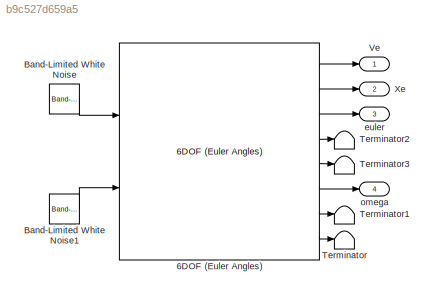
MODEL slx_b9c527d659a5
KIND model
CONFIG AbsTol = auto
CONFIG EnableMultiTasking = off
CONFIG FixedStep = auto
CONFIG MaxStep = auto
CONFIG MinStep = auto
CONFIG RelTol = 1e-3
CONFIG SampleTimeConstraint = Unconstrained
CONFIG Solver = VariableStepAuto
CONFIG SolverName = VariableStepAuto
CONFIG StartTime = 0.0
CONFIG StopTime = 10.0
BLOCK [Reference] 6DOF (Euler Angles)  REF=shared6dof/6DOF (Euler Angles)
  Ports = [2, 8]
  SourceBlock = shared6dof/6DOF (Euler Angles)
  SourceProductBaseCode = AE
  SourceProductName = Aerospace Blockset
  SourceType = 6DOF EoM (Body Axis)
BLOCK [Reference] Band-Limited White Noise  REF=simulink/Sources/Band-Limited
White Noise
  Ports = [0, 1]
  SourceBlock = simulink/Sources/Band-Limited\nWhite Noise
  SourceProductBaseCode = SL
  SourceProductName = Simulink
  SourceType = Band-Limited White Noise.
BLOCK [Reference] Band-Limited White Noise1  REF=simulink/Sources/Band-Limited
White Noise
  Ports = [0, 1]
  SourceBlock = simulink/Sources/Band-Limited\nWhite Noise
  SourceProductBaseCode = SL
  SourceProductName = Simulink
  SourceType = Band-Limited White Noise.
BLOCK [Terminator] Terminator
BLOCK [Terminator] Terminator1
BLOCK [Terminator] Terminator2
BLOCK [Terminator] Terminator3
BLOCK [Outport] Ve
  IconDisplay = Port number
BLOCK [Outport] Xe
  IconDisplay = Port number
  Port = 2
BLOCK [Outport] euler
  IconDisplay = Port number
  Port = 3
BLOCK [Outport] omega
  IconDisplay = Port number
  Port = 4
LINE 6DOF (Euler Angles):1 -> Ve:1
LINE 6DOF (Euler Angles):2 -> Xe:1
LINE 6DOF (Euler Angles):3 -> euler:1
LINE 6DOF (Euler Angles):4 -> Terminator2:1
LINE 6DOF (Euler Angles):5 -> Terminator3:1
LINE 6DOF (Euler Angles):6 -> omega:1
LINE 6DOF (Euler Angles):7 -> Terminator1:1
LINE 6DOF (Euler Angles):8 -> Terminator:1
LINE Band-Limited White Noise1:1 -> 6DOF (Euler Angles):2
LINE Band-Limited White Noise:1 -> 6DOF (Euler Angles):1
